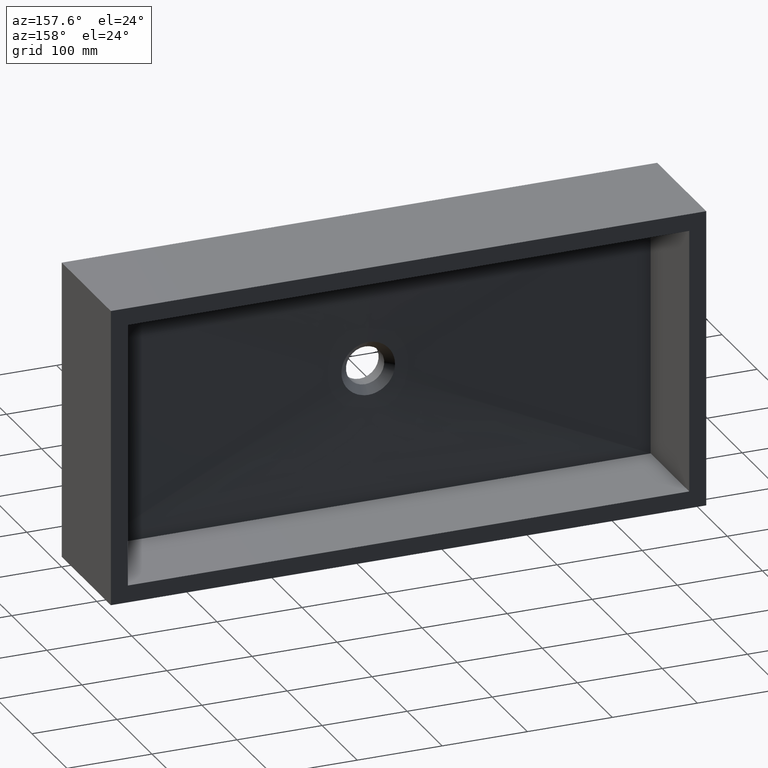
[diagram: clean part render]
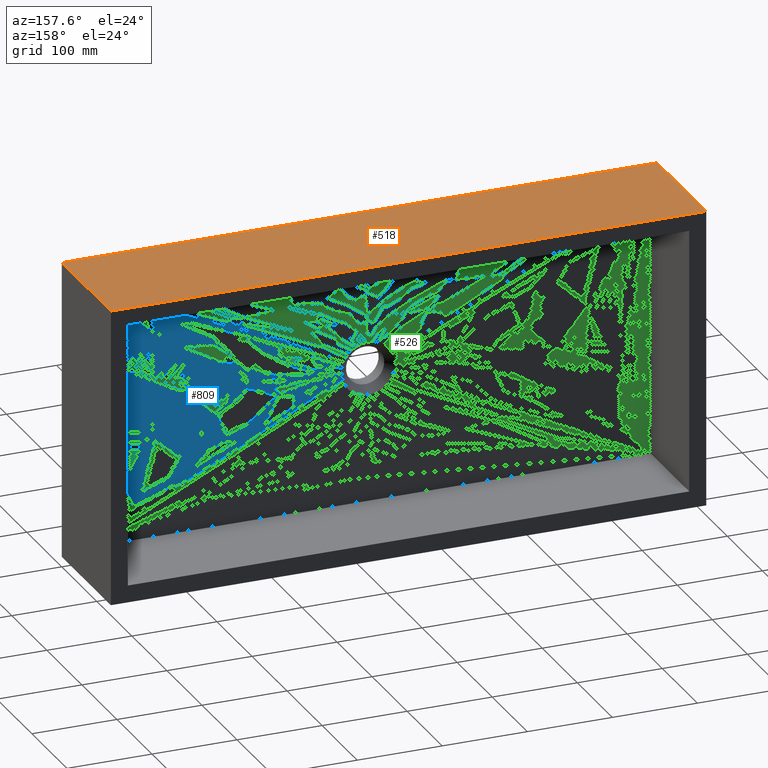
[diagram: same view with three faces highlighted in distinct colors, each labeled with its STEP entity id]
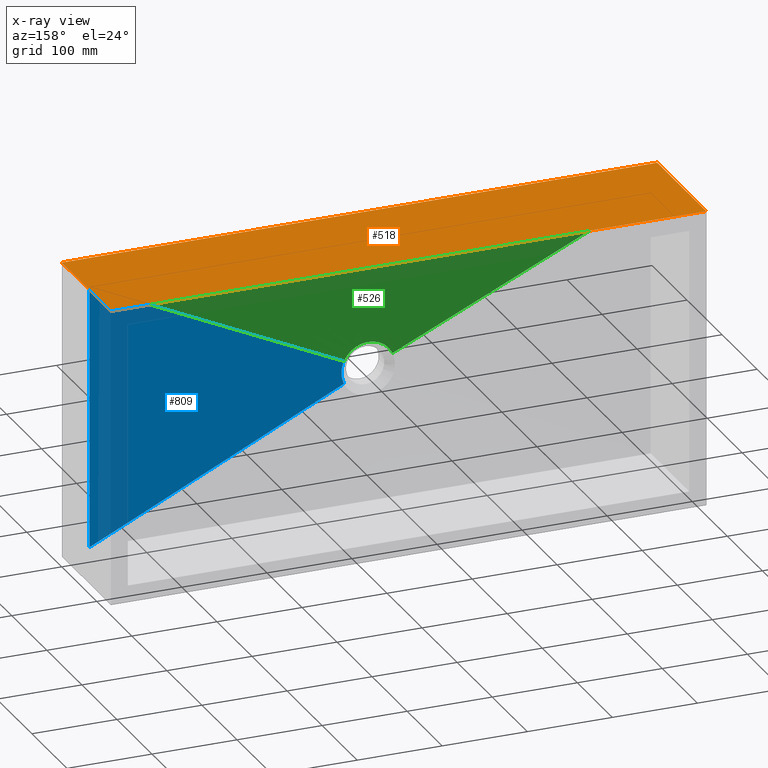
[diagram: x-ray of the same camera — body ghosted, the three highlighted faces saturated]
A machine part, auxiliary view with three faces highlighted in distinct colors.
The next image is the same camera in x-ray (body ghosted, the three faces saturated) — at least one of them is partly hidden behind the body in this view.
Their STEP definitions:

[orange] entity #518 — the highlighted planar face has unit normal (0, 0, -1).
#103 = EDGE_CURVE ( 'NONE', #592, #937, #839, .T. ) ;
#106 = EDGE_CURVE ( 'NONE', #937, #530, #705, .T. ) ;
#126 = ORIENTED_EDGE ( 'NONE', *, *, #187, .F. ) ;
#158 = VECTOR ( 'NONE', #863, 1000.000000000000000 ) ;
#187 = EDGE_CURVE ( 'NONE', #985, #530, #659, .T. ) ;
#210 = CARTESIAN_POINT ( 'NONE',  ( 0.0000000000000000000, 140.0000000000000000, 0.0000000000000000000 ) ) ;
#216 = LINE ( 'NONE', #670, #229 ) ;
#229 = VECTOR ( 'NONE', #760, 1000.000000000000000 ) ;
#246 = FACE_OUTER_BOUND ( 'NONE', #949, .T. ) ;
#259 = DIRECTION ( 'NONE',  ( 1.000000000000000000, 0.0000000000000000000, 0.0000000000000000000 ) ) ;
#339 = VECTOR ( 'NONE', #259, 1000.000000000000000 ) ;
#448 = ORIENTED_EDGE ( 'NONE', *, *, #103, .T. ) ;
#518 = ADVANCED_FACE ( 'NONE', ( #246 ), #801, .F. ) ;
#530 = VERTEX_POINT ( 'NONE', #867 ) ;
#540 = DIRECTION ( 'NONE',  ( 0.0000000000000000000, 0.0000000000000000000, -1.000000000000000000 ) ) ;
#547 = CARTESIAN_POINT ( 'NONE',  ( 0.0000000000000000000, 140.0000000000000000, 0.0000000000000000000 ) ) ;
#592 = VERTEX_POINT ( 'NONE', #210 ) ;
#610 = ORIENTED_EDGE ( 'NONE', *, *, #106, .T. ) ;
#659 = LINE ( 'NONE', #1066, #1003 ) ;
#670 = CARTESIAN_POINT ( 'NONE',  ( 0.0000000000000000000, 140.0000000000000000, 0.0000000000000000000 ) ) ;
#690 = CARTESIAN_POINT ( 'NONE',  ( 0.0000000000000000000, 0.0000000000000000000, 0.0000000000000000000 ) ) ;
#705 = LINE ( 'NONE', #1022, #339 ) ;
#707 = ORIENTED_EDGE ( 'NONE', *, *, #1109, .F. ) ;
#760 = DIRECTION ( 'NONE',  ( 1.000000000000000000, 0.0000000000000000000, 0.0000000000000000000 ) ) ;
#801 = PLANE ( 'NONE',  #1135 ) ;
#822 = DIRECTION ( 'NONE',  ( -1.000000000000000000, 0.0000000000000000000, -0.0000000000000000000 ) ) ;
#839 = LINE ( 'NONE', #1036, #158 ) ;
#863 = DIRECTION ( 'NONE',  ( -0.0000000000000000000, -1.000000000000000000, -0.0000000000000000000 ) ) ;
#867 = CARTESIAN_POINT ( 'NONE',  ( 700.0000000000000000, 0.0000000000000000000, 0.0000000000000000000 ) ) ;
#937 = VERTEX_POINT ( 'NONE', #690 ) ;
#949 = EDGE_LOOP ( 'NONE', ( #610, #126, #707, #448 ) ) ;
#985 = VERTEX_POINT ( 'NONE', #1108 ) ;
#1003 = VECTOR ( 'NONE', #1015, 1000.000000000000000 ) ;
#1015 = DIRECTION ( 'NONE',  ( -0.0000000000000000000, -1.000000000000000000, -0.0000000000000000000 ) ) ;
#1022 = CARTESIAN_POINT ( 'NONE',  ( 0.0000000000000000000, 0.0000000000000000000, 0.0000000000000000000 ) ) ;
#1036 = CARTESIAN_POINT ( 'NONE',  ( 0.0000000000000000000, 140.0000000000000000, 0.0000000000000000000 ) ) ;
#1066 = CARTESIAN_POINT ( 'NONE',  ( 700.0000000000000000, 140.0000000000000000, 0.0000000000000000000 ) ) ;
#1108 = CARTESIAN_POINT ( 'NONE',  ( 700.0000000000000000, 140.0000000000000000, 0.0000000000000000000 ) ) ;
#1109 = EDGE_CURVE ( 'NONE', #592, #985, #216, .T. ) ;
#1135 = AXIS2_PLACEMENT_3D ( 'NONE', #547, #540, #822 ) ;

[blue] entity #809 — the highlighted face is a freeform B-spline surface patch.
#2 = VECTOR ( 'NONE', #689, 1000.000000000000000 ) ;
#11 = CARTESIAN_POINT ( 'NONE',  ( 679.9999999999998900, 30.00000000000000000, -71.66666666666662900 ) ) ;
#23 = CARTESIAN_POINT ( 'NONE',  ( 679.9999999999998900, 30.00000000000000000, -123.3333333333332700 ) ) ;
#40 = CARTESIAN_POINT ( 'NONE',  ( 378.5115717477714300, 25.00000000000000000, -161.6082011487739900 ) ) ;
#43 = EDGE_LOOP ( 'NONE', ( #816, #1059, #437, #369, #637 ) ) ;
#73 = VERTEX_POINT ( 'NONE', #993 ) ;
#79 = CARTESIAN_POINT ( 'NONE',  ( 679.9999999999998900, 30.00000000000002800, -329.9999999999999400 ) ) ;
#148 = CARTESIAN_POINT ( 'NONE',  ( 381.4999994472596000, 25.00000000000000000, -175.0067734715248100 ) ) ;
#189 = EDGE_CURVE ( 'NONE', #73, #1110, #428, .T. ) ;
#220 = VERTEX_POINT ( 'NONE', #79 ) ;
#222 = CARTESIAN_POINT ( 'NONE',  ( 529.2557858738856600, 27.50000000000000400, -259.1958994256129400 ) ) ;
#269 = CARTESIAN_POINT ( 'NONE',  ( 679.9999999999998900, 30.00000000000000000, -200.8333333333332300 ) ) ;
#285 = CARTESIAN_POINT ( 'NONE',  ( 379.4604620994735500, 25.00000000000000400, -186.3715806830860500 ) ) ;
#334 = CARTESIAN_POINT ( 'NONE',  ( 378.5115717477714300, 25.00000000000000000, -188.3917988512259900 ) ) ;
#366 = CARTESIAN_POINT ( 'NONE',  ( 381.4992346600431000, 24.99999999999999600, -177.3498841475420100 ) ) ;
#369 = ORIENTED_EDGE ( 'NONE', *, *, #724, .F. ) ;
#392 = FACE_OUTER_BOUND ( 'NONE', #43, .T. ) ;
#404 = LINE ( 'NONE', #629, #2 ) ;
#406 = CARTESIAN_POINT ( 'NONE',  ( 679.9999999999998900, 30.00000000000000000, -278.3333333333332600 ) ) ;
#407 = CARTESIAN_POINT ( 'NONE',  ( 679.9999999999998900, 30.00000000000000400, -329.9999999999999400 ) ) ;
#428 = LINE ( 'NONE', #624, #903 ) ;
#437 = ORIENTED_EDGE ( 'NONE', *, *, #189, .T. ) ;
#451 = CARTESIAN_POINT ( 'NONE',  ( 381.2354272984611000, 24.99999999999999600, -170.3144827519747100 ) ) ;
#453 = CARTESIAN_POINT ( 'NONE',  ( 381.5000000000002300, 24.99999999999999600, -177.3431129004398200 ) ) ;
#457 = CARTESIAN_POINT ( 'NONE',  ( 381.2354272984612200, 25.00000000000000700, -179.6855172480252600 ) ) ;
#476 = CARTESIAN_POINT ( 'NONE',  ( 381.4999983614326300, 25.00000000000000000, -175.0101602048184800 ) ) ;
#482 = LINE ( 'NONE', #222, #1101 ) ;
#510 = DIRECTION ( 'NONE',  ( 0.9050273024632505800, 0.01500932071771084700, -0.4250885814600115500 ) ) ;
#523 = CARTESIAN_POINT ( 'NONE',  ( 381.2346900078827000, 25.00000000000000700, -179.6887800756660700 ) ) ;
#528 = CARTESIAN_POINT ( 'NONE',  ( 381.5000000000002300, 25.00000000000000000, -172.6568870995602100 ) ) ;
#550 = CARTESIAN_POINT ( 'NONE',  ( 381.5000000000002300, 25.00000000000000000, -172.6568870995602100 ) ) ;
#562 = CARTESIAN_POINT ( 'NONE',  ( 381.4999983614326300, 25.00000000000000000, -175.0101602048184800 ) ) ;
#574 = CARTESIAN_POINT ( 'NONE',  ( 378.5115717477714300, 25.00000000000000000, -188.3917988512259900 ) ) ;
#591 = CARTESIAN_POINT ( 'NONE',  ( 379.4604620994735500, 25.00000000000000400, -186.3715806830860500 ) ) ;
#593 = EDGE_CURVE ( 'NONE', #980, #220, #482, .T. ) ;
#608 = CARTESIAN_POINT ( 'NONE',  ( 378.5115717477714300, 25.00000000000000000, -188.3917988512259900 ) ) ;
#613 = CARTESIAN_POINT ( 'NONE',  ( 380.2152386510359700, 25.00000000000000400, -184.2002904117172500 ) ) ;
#614 = CARTESIAN_POINT ( 'NONE',  ( 381.4999983614326300, 25.00000000000000000, -175.0101602048184800 ) ) ;
#620 = CARTESIAN_POINT ( 'NONE',  ( 679.9999999999998900, 30.00000000000002800, -20.00000000000000000 ) ) ;
#624 = CARTESIAN_POINT ( 'NONE',  ( 529.2557858738856600, 27.50000000000000400, -90.80410057438699300 ) ) ;
#629 = CARTESIAN_POINT ( 'NONE',  ( 679.9999999999998900, 30.00000000000000000, -174.9999999999999100 ) ) ;
#637 = ORIENTED_EDGE ( 'NONE', *, *, #593, .F. ) ;
#684 = EDGE_CURVE ( 'NONE', #980, #1132, #728, .T. ) ;
#689 = DIRECTION ( 'NONE',  ( -0.0000000000000000000, 1.343011723336884200E-016, 1.000000000000000000 ) ) ;
#704 = B_SPLINE_CURVE_WITH_KNOTS ( 'NONE', 3,
 ( #476, #148, #1012, #528, #451, #754, #1188, #40 ),
 .UNSPECIFIED., .F., .F.,
 ( 4, 2, 2, 4 ),
 ( 0.0000000000000000000, 0.0007221783197544957500, 0.5003610891598772000, 1.000000000000000000 ),
 .UNSPECIFIED. ) ;
#724 = EDGE_CURVE ( 'NONE', #220, #1110, #404, .T. ) ;
#728 = B_SPLINE_CURVE_WITH_KNOTS ( 'NONE', 3,
 ( #574, #591, #613, #523, #366, #614 ),
 .UNSPECIFIED., .F., .F.,
 ( 4, 2, 4 ),
 ( 0.0000000000000000000, 0.5003616114557842800, 1.000000000000000000 ),
 .UNSPECIFIED. ) ;
#729 = DIRECTION ( 'NONE',  ( 0.9050273024632505800, 0.01500932071771084700, 0.4250885814600116600 ) ) ;
#754 = CARTESIAN_POINT ( 'NONE',  ( 380.2152386510360300, 25.00000000000000400, -165.7997095882827000 ) ) ;
#809 = ADVANCED_FACE ( 'NONE', ( #392 ), #1173, .F. ) ;
#816 = ORIENTED_EDGE ( 'NONE', *, *, #684, .T. ) ;
#869 = CARTESIAN_POINT ( 'NONE',  ( 679.9999999999998900, 30.00000000000000000, -45.83333333333330700 ) ) ;
#872 = CARTESIAN_POINT ( 'NONE',  ( 379.4604620994734900, 25.00000000000000400, -163.6284193169139200 ) ) ;
#903 = VECTOR ( 'NONE', #729, 1000.000000000000100 ) ;
#935 = CARTESIAN_POINT ( 'NONE',  ( 380.2152386510360300, 25.00000000000000400, -165.7997095882827000 ) ) ;
#980 = VERTEX_POINT ( 'NONE', #334 ) ;
#993 = CARTESIAN_POINT ( 'NONE',  ( 378.5115717477714300, 25.00000000000000000, -161.6082011487739900 ) ) ;
#1012 = CARTESIAN_POINT ( 'NONE',  ( 381.5000000000002300, 25.00000000000000000, -175.0033867365025600 ) ) ;
#1059 = ORIENTED_EDGE ( 'NONE', *, *, #1149, .T. ) ;
#1075 = CARTESIAN_POINT ( 'NONE',  ( 381.2354272984611000, 24.99999999999999600, -170.3144827519747100 ) ) ;
#1101 = VECTOR ( 'NONE', #510, 1000.000000000000100 ) ;
#1110 = VERTEX_POINT ( 'NONE', #620 ) ;
#1112 = CARTESIAN_POINT ( 'NONE',  ( 378.5115717477714300, 25.00000000000000000, -161.6082011487739900 ) ) ;
#1132 = VERTEX_POINT ( 'NONE', #562 ) ;
#1149 = EDGE_CURVE ( 'NONE', #1132, #73, #704, .T. ) ;
#1171 = CARTESIAN_POINT ( 'NONE',  ( 380.2152386510359700, 25.00000000000000400, -184.2002904117172500 ) ) ;
#1173 = B_SPLINE_SURFACE_WITH_KNOTS ( 'NONE', 3, 1, ( 
 ( #1112, #1202 ),
 ( #872, #869 ),
 ( #935, #11 ),
 ( #1075, #23 ),
 ( #550, #1182 ),
 ( #453, #269 ),
 ( #457, #1175 ),
 ( #1171, #406 ),
 ( #285, #1213 ),
 ( #608, #407 ) ),
 .UNSPECIFIED., .F., .F., .F.,
 ( 4, 2, 2, 2, 4 ),
 ( 2, 2 ),
 ( 0.0000000000000000000, 0.2500000000000000000, 0.5000000000000000000, 0.7500000000000000000, 1.000000000000000000 ),
 ( 0.0000000000000000000, 1.000000000000000000 ),
 .UNSPECIFIED. ) ;
#1175 = CARTESIAN_POINT ( 'NONE',  ( 679.9999999999998900, 30.00000000000000000, -226.6666666666665700 ) ) ;
#1182 = CARTESIAN_POINT ( 'NONE',  ( 679.9999999999998900, 30.00000000000000000, -149.1666666666666000 ) ) ;
#1188 = CARTESIAN_POINT ( 'NONE',  ( 379.4604620994734900, 25.00000000000000400, -163.6284193169139200 ) ) ;
#1202 = CARTESIAN_POINT ( 'NONE',  ( 679.9999999999998900, 30.00000000000000400, -20.00000000000000000 ) ) ;
#1213 = CARTESIAN_POINT ( 'NONE',  ( 679.9999999999998900, 30.00000000000000000, -304.1666666666665700 ) ) ;

[green] entity #526 — the highlighted face is a freeform B-spline surface patch.
#22 = CARTESIAN_POINT ( 'NONE',  ( 324.6842503826536000, 25.00000000000001100, -156.2061360017339100 ) ) ;
#25 = CARTESIAN_POINT ( 'NONE',  ( 321.9934827942635100, 25.00000000000000400, -160.5329237366995600 ) ) ;
#27 = CARTESIAN_POINT ( 'NONE',  ( 542.4999999999998900, 30.00000000000000700, -20.00000000000000400 ) ) ;
#30 = EDGE_CURVE ( 'NONE', #218, #594, #418, .T. ) ;
#32 = CARTESIAN_POINT ( 'NONE',  ( 370.5555471052089700, 25.00000000000000400, -151.0877898574568700 ) ) ;
#59 = VECTOR ( 'NONE', #848, 1000.000000000000100 ) ;
#61 = CARTESIAN_POINT ( 'NONE',  ( 376.0770024748685500, 25.00000000000000700, -157.2838352907152700 ) ) ;
#68 = CARTESIAN_POINT ( 'NONE',  ( 583.7500000000000000, 30.00000000000001100, -20.00000000000000400 ) ) ;
#69 = CARTESIAN_POINT ( 'NONE',  ( 375.3157496173464600, 25.00000000000001100, -156.2061360017338500 ) ) ;
#71 = CARTESIAN_POINT ( 'NONE',  ( 611.2500000000000000, 30.00000000000000700, -20.00000000000000400 ) ) ;
#72 = CARTESIAN_POINT ( 'NONE',  ( 569.9999999999998900, 30.00000000000000700, -20.00000000000000400 ) ) ;
#75 = CARTESIAN_POINT ( 'NONE',  ( 373.6032391787110800, 25.00000000000001100, -154.0958472320436400 ) ) ;
#83 = CARTESIAN_POINT ( 'NONE',  ( 372.6518553396533100, 25.00000000000000700, -153.0633238532582000 ) ) ;
#111 = CARTESIAN_POINT ( 'NONE',  ( 459.9999999999997700, 30.00000000000000000, -20.00000000000000000 ) ) ;
#131 = CARTESIAN_POINT ( 'NONE',  ( 652.5000000000000000, 30.00000000000000700, -20.00000000000000400 ) ) ;
#134 = CARTESIAN_POINT ( 'NONE',  ( 358.2109093827091900, 25.00000000000000400, -144.5455184194620400 ) ) ;
#135 = CARTESIAN_POINT ( 'NONE',  ( 418.7499999999997700, 30.00000000000000000, -19.99999999999999600 ) ) ;
#137 = CARTESIAN_POINT ( 'NONE',  ( 377.4223278247676500, 25.00000000000000400, -159.4472353984323000 ) ) ;
#139 = CARTESIAN_POINT ( 'NONE',  ( 343.3937862718099700, 25.00000000000000000, -144.1559935591858200 ) ) ;
#145 = VERTEX_POINT ( 'NONE', #915 ) ;
#149 = CARTESIAN_POINT ( 'NONE',  ( 501.2499999999998900, 30.00000000000000400, -20.00000000000000400 ) ) ;
#151 = CARTESIAN_POINT ( 'NONE',  ( 361.3033238118888400, 25.00000000000000400, -145.5529398405549800 ) ) ;
#153 = CARTESIAN_POINT ( 'NONE',  ( 625.0000000000000000, 30.00000000000000700, -20.00000000000000400 ) ) ;
#157 = CARTESIAN_POINT ( 'NONE',  ( 366.9365277214216100, 25.00000000000000700, -148.3974133179754100 ) ) ;
#170 = CARTESIAN_POINT ( 'NONE',  ( 361.3033238118888400, 25.00000000000000400, -145.5529398405549800 ) ) ;
#172 = CARTESIAN_POINT ( 'NONE',  ( 330.5894850155410200, 25.00000000000000400, -150.1449100289054900 ) ) ;
#174 = CARTESIAN_POINT ( 'NONE',  ( 366.9365277214216100, 25.00000000000000700, -148.3974133179754100 ) ) ;
#176 = CARTESIAN_POINT ( 'NONE',  ( 666.2500000000000000, 30.00000000000000700, -20.00000000000000400 ) ) ;
#180 = CARTESIAN_POINT ( 'NONE',  ( 170.7442141261142600, 27.50000000000000400, -90.80410057438699300 ) ) ;
#185 = CARTESIAN_POINT ( 'NONE',  ( 365.6075205703249400, 25.00000000000000400, -147.5929861643090500 ) ) ;
#188 = CARTESIAN_POINT ( 'NONE',  ( 378.5115717477714300, 25.00000000000000000, -161.6082011487739900 ) ) ;
#191 = CARTESIAN_POINT ( 'NONE',  ( 362.7908994682008500, 25.00000000000000000, -146.1706400255355900 ) ) ;
#196 = CARTESIAN_POINT ( 'NONE',  ( 679.9999999999998900, 30.00000000000000400, -20.00000000000000000 ) ) ;
#206 = DIRECTION ( 'NONE',  ( -1.000000000000000000, -0.0000000000000000000, -0.0000000000000000000 ) ) ;
#217 = LINE ( 'NONE', #1023, #59 ) ;
#218 = VERTEX_POINT ( 'NONE', #821 ) ;
#219 = CARTESIAN_POINT ( 'NONE',  ( 321.4884282522285200, 25.00000000000000000, -161.6082011487739900 ) ) ;
#223 = CARTESIAN_POINT ( 'NONE',  ( 47.49999999999995700, 30.00000000000000400, -20.00000000000000000 ) ) ;
#227 = VECTOR ( 'NONE', #206, 1000.000000000000000 ) ;
#239 = CARTESIAN_POINT ( 'NONE',  ( 326.3967608212890400, 25.00000000000000400, -154.0958472320436400 ) ) ;
#245 = CARTESIAN_POINT ( 'NONE',  ( 369.4105149844588700, 25.00000000000000400, -150.1449100289054300 ) ) ;
#264 = CARTESIAN_POINT ( 'NONE',  ( 370.5555471052089700, 25.00000000000000400, -151.0877898574568700 ) ) ;
#273 = CARTESIAN_POINT ( 'NONE',  ( 528.7499999999998900, 30.00000000000000700, -20.00000000000000400 ) ) ;
#277 = FACE_OUTER_BOUND ( 'NONE', #1107, .T. ) ;
#279 = CARTESIAN_POINT ( 'NONE',  ( 372.6518553396533100, 25.00000000000000700, -153.0633238532582000 ) ) ;
#280 = LINE ( 'NONE', #395, #227 ) ;
#282 = CARTESIAN_POINT ( 'NONE',  ( 373.6032391787110800, 25.00000000000001100, -154.0958472320436400 ) ) ;
#305 = B_SPLINE_CURVE_WITH_KNOTS ( 'NONE', 3,
 ( #752, #1185, #508, #1199, #1053, #741, #871, #616, #172, #725, #579, #908, #784, #988, #682, #667, #1001, #912, #819, #902, #134, #151, #191, #185, #174, #245, #264, #279, #282, #541, #577, #584, #587, #310 ),
 .UNSPECIFIED., .F., .F.,
 ( 4, 2, 2, 2, 2, 2, 2, 2, 2, 2, 2, 2, 2, 2, 2, 2, 4 ),
 ( 0.0000000000000000000, 0.06250000000000000000, 0.1250000000000000000, 0.1875000000000000000, 0.2500000000000000000, 0.3125000000000000000, 0.3750000000000000000, 0.4375000000000000000, 0.5000000000000000000, 0.5625000000000000000, 0.6250000000000000000, 0.6875000000000000000, 0.7500000000000000000, 0.8125000000000000000, 0.8750000000000000000, 0.9375000000000000000, 1.000000000000000000 ),
 .UNSPECIFIED. ) ;
#310 = CARTESIAN_POINT ( 'NONE',  ( 378.5115717477714300, 25.00000000000000000, -161.6082011487739900 ) ) ;
#328 = CARTESIAN_POINT ( 'NONE',  ( 171.2499999999998600, 30.00000000000000000, -20.00000000000000400 ) ) ;
#333 = CARTESIAN_POINT ( 'NONE',  ( 198.7499999999998300, 30.00000000000000000, -20.00000000000000400 ) ) ;
#388 = VECTOR ( 'NONE', #852, 1000.000000000000100 ) ;
#394 = CARTESIAN_POINT ( 'NONE',  ( 356.6062137281900300, 24.99999999999999300, -144.1559935591857300 ) ) ;
#395 = CARTESIAN_POINT ( 'NONE',  ( 349.9999999999997700, 30.00000000000000000, -19.99999999999999600 ) ) ;
#415 = CARTESIAN_POINT ( 'NONE',  ( 378.0065172057364900, 25.00000000000000400, -160.5329237366995300 ) ) ;
#418 = LINE ( 'NONE', #180, #388 ) ;
#422 = CARTESIAN_POINT ( 'NONE',  ( 20.00000000000000000, 30.00000000000000400, -20.00000000000000000 ) ) ;
#423 = ORIENTED_EDGE ( 'NONE', *, *, #617, .T. ) ;
#500 = CARTESIAN_POINT ( 'NONE',  ( 294.9999999999997700, 30.00000000000000000, -19.99999999999999600 ) ) ;
#506 = CARTESIAN_POINT ( 'NONE',  ( 322.4999999999997700, 30.00000000000000000, -19.99999999999999600 ) ) ;
#508 = CARTESIAN_POINT ( 'NONE',  ( 322.5776721752322900, 25.00000000000000400, -159.4472353984323300 ) ) ;
#526 = ADVANCED_FACE ( 'NONE', ( #277 ), #810, .T. ) ;
#541 = CARTESIAN_POINT ( 'NONE',  ( 375.3157496173464600, 25.00000000000001100, -156.2061360017338500 ) ) ;
#546 = CARTESIAN_POINT ( 'NONE',  ( 321.4884282522285200, 25.00000000000000000, -161.6082011487739900 ) ) ;
#577 = CARTESIAN_POINT ( 'NONE',  ( 376.0770024748685500, 25.00000000000000700, -157.2838352907152700 ) ) ;
#579 = CARTESIAN_POINT ( 'NONE',  ( 334.3924794296751200, 25.00000000000000000, -147.5929861643090200 ) ) ;
#584 = CARTESIAN_POINT ( 'NONE',  ( 377.4223278247676500, 25.00000000000000400, -159.4472353984323000 ) ) ;
#587 = CARTESIAN_POINT ( 'NONE',  ( 378.0065172057364900, 25.00000000000000400, -160.5329237366995300 ) ) ;
#594 = VERTEX_POINT ( 'NONE', #219 ) ;
#616 = CARTESIAN_POINT ( 'NONE',  ( 329.4444528947909100, 24.99999999999999600, -151.0877898574568400 ) ) ;
#617 = EDGE_CURVE ( 'NONE', #145, #218, #280, .T. ) ;
#639 = CARTESIAN_POINT ( 'NONE',  ( 348.3328162882058900, 25.00000000000000000, -143.4999999999996900 ) ) ;
#657 = CARTESIAN_POINT ( 'NONE',  ( 404.9999999999998300, 30.00000000000000000, -19.99999999999999600 ) ) ;
#658 = CARTESIAN_POINT ( 'NONE',  ( 487.4999999999998900, 30.00000000000000000, -20.00000000000000400 ) ) ;
#664 = CARTESIAN_POINT ( 'NONE',  ( 446.2499999999998300, 30.00000000000000000, -19.99999999999999600 ) ) ;
#667 = CARTESIAN_POINT ( 'NONE',  ( 346.6657633779384500, 24.99999999999999300, -143.6331758175677200 ) ) ;
#672 = CARTESIAN_POINT ( 'NONE',  ( 362.7908994682008500, 25.00000000000000000, -146.1706400255355900 ) ) ;
#678 = CARTESIAN_POINT ( 'NONE',  ( 346.6657633779384500, 24.99999999999999300, -143.6331758175677200 ) ) ;
#682 = CARTESIAN_POINT ( 'NONE',  ( 343.3937862718099700, 25.00000000000000000, -144.1559935591858200 ) ) ;
#703 = CARTESIAN_POINT ( 'NONE',  ( 363.7499999999997200, 30.00000000000000000, -19.99999999999999600 ) ) ;
#708 = CARTESIAN_POINT ( 'NONE',  ( 351.6671837117940000, 24.99999999999999600, -143.4999999999997200 ) ) ;
#711 = CARTESIAN_POINT ( 'NONE',  ( 353.3342366220616100, 25.00000000000000000, -143.6331758175677700 ) ) ;
#719 = CARTESIAN_POINT ( 'NONE',  ( 333.0634722785785000, 25.00000000000000400, -148.3974133179754100 ) ) ;
#722 = CARTESIAN_POINT ( 'NONE',  ( 365.6075205703249400, 25.00000000000000400, -147.5929861643090500 ) ) ;
#725 = CARTESIAN_POINT ( 'NONE',  ( 333.0634722785785000, 25.00000000000000400, -148.3974133179754100 ) ) ;
#741 = CARTESIAN_POINT ( 'NONE',  ( 326.3967608212890400, 25.00000000000000400, -154.0958472320436400 ) ) ;
#752 = CARTESIAN_POINT ( 'NONE',  ( 321.4884282522285200, 25.00000000000000000, -161.6082011487739900 ) ) ;
#758 = CARTESIAN_POINT ( 'NONE',  ( 336.2499999999997700, 30.00000000000000000, -19.99999999999999600 ) ) ;
#784 = CARTESIAN_POINT ( 'NONE',  ( 338.6966761881111000, 25.00000000000000400, -145.5529398405550100 ) ) ;
#789 = CARTESIAN_POINT ( 'NONE',  ( 281.2499999999997700, 30.00000000000000000, -19.99999999999999600 ) ) ;
#791 = CARTESIAN_POINT ( 'NONE',  ( 337.2091005317991500, 25.00000000000000400, -146.1706400255355900 ) ) ;
#792 = CARTESIAN_POINT ( 'NONE',  ( 212.4999999999998300, 30.00000000000000000, -20.00000000000000400 ) ) ;
#810 = B_SPLINE_SURFACE_WITH_KNOTS ( 'NONE', 3, 1, ( 
 ( #546, #422 ),
 ( #25, #1060 ),
 ( #1111, #223 ),
 ( #913, #916 ),
 ( #22, #929 ),
 ( #239, #896 ),
 ( #899, #813 ),
 ( #895, #811 ),
 ( #876, #328 ),
 ( #719, #333 ),
 ( #1115, #792 ),
 ( #791, #885 ),
 ( #979, #884 ),
 ( #905, #789 ),
 ( #139, #500 ),
 ( #678, #506 ),
 ( #639, #758 ),
 ( #708, #703 ),
 ( #711, #1120 ),
 ( #394, #657 ),
 ( #1058, #135 ),
 ( #170, #664 ),
 ( #672, #111 ),
 ( #722, #658 ),
 ( #157, #149 ),
 ( #880, #273 ),
 ( #32, #27 ),
 ( #83, #72 ),
 ( #75, #68 ),
 ( #69, #71 ),
 ( #61, #153 ),
 ( #137, #131 ),
 ( #415, #176 ),
 ( #188, #196 ) ),
 .UNSPECIFIED., .F., .F., .F.,
 ( 4, 2, 2, 2, 2, 2, 2, 2, 2, 2, 2, 2, 2, 2, 2, 2, 4 ),
 ( 2, 2 ),
 ( 0.0000000000000000000, 0.06250000000000000000, 0.1250000000000000000, 0.1875000000000000000, 0.2500000000000000000, 0.3125000000000000000, 0.3750000000000000000, 0.4375000000000000000, 0.5000000000000000000, 0.5625000000000000000, 0.6250000000000000000, 0.6875000000000000000, 0.7500000000000000000, 0.8125000000000000000, 0.8750000000000000000, 0.9375000000000000000, 1.000000000000000000 ),
 ( 0.0000000000000000000, 1.000000000000000000 ),
 .UNSPECIFIED. ) ;
#811 = CARTESIAN_POINT ( 'NONE',  ( 157.4999999999998600, 30.00000000000000000, -20.00000000000000400 ) ) ;
#813 = CARTESIAN_POINT ( 'NONE',  ( 129.9999999999998600, 30.00000000000000000, -20.00000000000000000 ) ) ;
#819 = CARTESIAN_POINT ( 'NONE',  ( 353.3342366220616100, 25.00000000000000000, -143.6331758175677700 ) ) ;
#821 = CARTESIAN_POINT ( 'NONE',  ( 20.00000000000000000, 30.00000000000000400, -20.00000000000000000 ) ) ;
#848 = DIRECTION ( 'NONE',  ( 0.9050273024632505800, 0.01500932071771084700, 0.4250885814600116600 ) ) ;
#852 = DIRECTION ( 'NONE',  ( 0.9050273024632505800, -0.01500932071771084700, -0.4250885814600116600 ) ) ;
#871 = CARTESIAN_POINT ( 'NONE',  ( 327.3481446603466900, 25.00000000000000400, -153.0633238532582300 ) ) ;
#876 = CARTESIAN_POINT ( 'NONE',  ( 330.5894850155410200, 25.00000000000000400, -150.1449100289054900 ) ) ;
#880 = CARTESIAN_POINT ( 'NONE',  ( 369.4105149844588700, 25.00000000000000400, -150.1449100289054300 ) ) ;
#884 = CARTESIAN_POINT ( 'NONE',  ( 253.7499999999998000, 30.00000000000000000, -20.00000000000000000 ) ) ;
#885 = CARTESIAN_POINT ( 'NONE',  ( 239.9999999999998300, 30.00000000000000000, -20.00000000000000000 ) ) ;
#895 = CARTESIAN_POINT ( 'NONE',  ( 329.4444528947909100, 24.99999999999999600, -151.0877898574568400 ) ) ;
#896 = CARTESIAN_POINT ( 'NONE',  ( 116.2499999999998900, 30.00000000000000400, -19.99999999999999600 ) ) ;
#898 = EDGE_CURVE ( 'NONE', #594, #901, #305, .T. ) ;
#899 = CARTESIAN_POINT ( 'NONE',  ( 327.3481446603466900, 25.00000000000000400, -153.0633238532582300 ) ) ;
#901 = VERTEX_POINT ( 'NONE', #907 ) ;
#902 = CARTESIAN_POINT ( 'NONE',  ( 356.6062137281900300, 24.99999999999999300, -144.1559935591857300 ) ) ;
#905 = CARTESIAN_POINT ( 'NONE',  ( 341.7890906172909200, 24.99999999999999600, -144.5455184194620400 ) ) ;
#907 = CARTESIAN_POINT ( 'NONE',  ( 378.5115717477714300, 25.00000000000000000, -161.6082011487739900 ) ) ;
#908 = CARTESIAN_POINT ( 'NONE',  ( 337.2091005317991500, 25.00000000000000400, -146.1706400255355900 ) ) ;
#912 = CARTESIAN_POINT ( 'NONE',  ( 351.6671837117940000, 24.99999999999999600, -143.4999999999997200 ) ) ;
#913 = CARTESIAN_POINT ( 'NONE',  ( 323.9229975251313900, 25.00000000000000400, -157.2838352907153000 ) ) ;
#915 = CARTESIAN_POINT ( 'NONE',  ( 679.9999999999998900, 30.00000000000000400, -20.00000000000000000 ) ) ;
#916 = CARTESIAN_POINT ( 'NONE',  ( 74.99999999999992900, 30.00000000000000400, -19.99999999999999600 ) ) ;
#929 = CARTESIAN_POINT ( 'NONE',  ( 88.74999999999991500, 30.00000000000000400, -19.99999999999999600 ) ) ;
#979 = CARTESIAN_POINT ( 'NONE',  ( 338.6966761881111000, 25.00000000000000400, -145.5529398405550100 ) ) ;
#988 = CARTESIAN_POINT ( 'NONE',  ( 341.7890906172909200, 24.99999999999999600, -144.5455184194620400 ) ) ;
#1001 = CARTESIAN_POINT ( 'NONE',  ( 348.3328162882058900, 25.00000000000000000, -143.4999999999996900 ) ) ;
#1019 = ORIENTED_EDGE ( 'NONE', *, *, #30, .T. ) ;
#1023 = CARTESIAN_POINT ( 'NONE',  ( 529.2557858738856600, 27.50000000000000400, -90.80410057438699300 ) ) ;
#1026 = EDGE_CURVE ( 'NONE', #901, #145, #217, .T. ) ;
#1053 = CARTESIAN_POINT ( 'NONE',  ( 324.6842503826536000, 25.00000000000001100, -156.2061360017339100 ) ) ;
#1058 = CARTESIAN_POINT ( 'NONE',  ( 358.2109093827091900, 25.00000000000000400, -144.5455184194620400 ) ) ;
#1060 = CARTESIAN_POINT ( 'NONE',  ( 33.74999999999997900, 30.00000000000000400, -20.00000000000000000 ) ) ;
#1107 = EDGE_LOOP ( 'NONE', ( #1156, #1181, #423, #1019 ) ) ;
#1111 = CARTESIAN_POINT ( 'NONE',  ( 322.5776721752322900, 25.00000000000000400, -159.4472353984323300 ) ) ;
#1115 = CARTESIAN_POINT ( 'NONE',  ( 334.3924794296751200, 25.00000000000000000, -147.5929861643090200 ) ) ;
#1120 = CARTESIAN_POINT ( 'NONE',  ( 377.4999999999997700, 30.00000000000000000, -19.99999999999999600 ) ) ;
#1156 = ORIENTED_EDGE ( 'NONE', *, *, #898, .T. ) ;
#1181 = ORIENTED_EDGE ( 'NONE', *, *, #1026, .T. ) ;
#1185 = CARTESIAN_POINT ( 'NONE',  ( 321.9934827942635100, 25.00000000000000400, -160.5329237366995600 ) ) ;
#1199 = CARTESIAN_POINT ( 'NONE',  ( 323.9229975251313900, 25.00000000000000400, -157.2838352907153000 ) ) ;